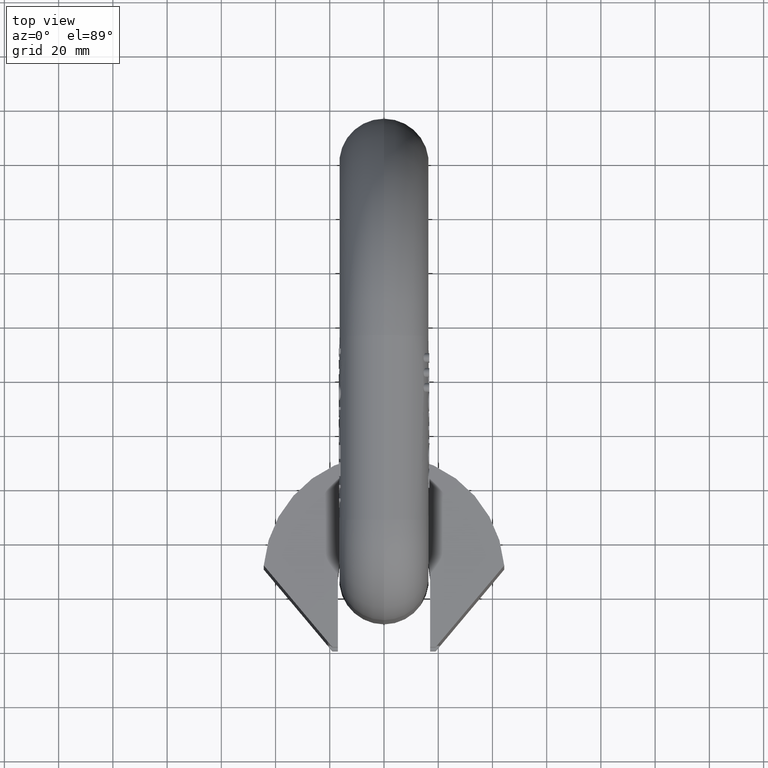
[diagram: clean part render]
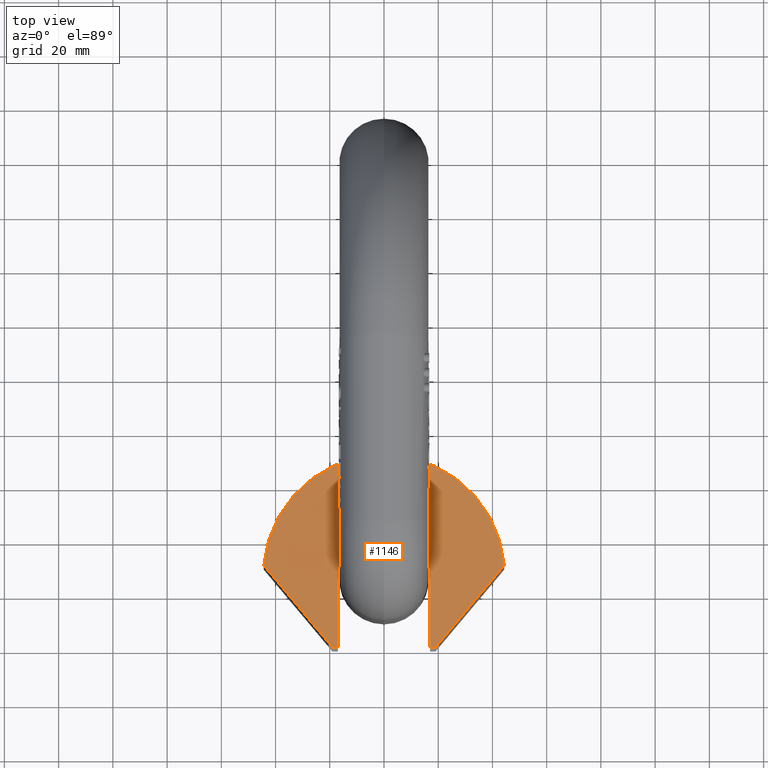
[diagram: same view with one face highlighted and labeled with its STEP entity id]
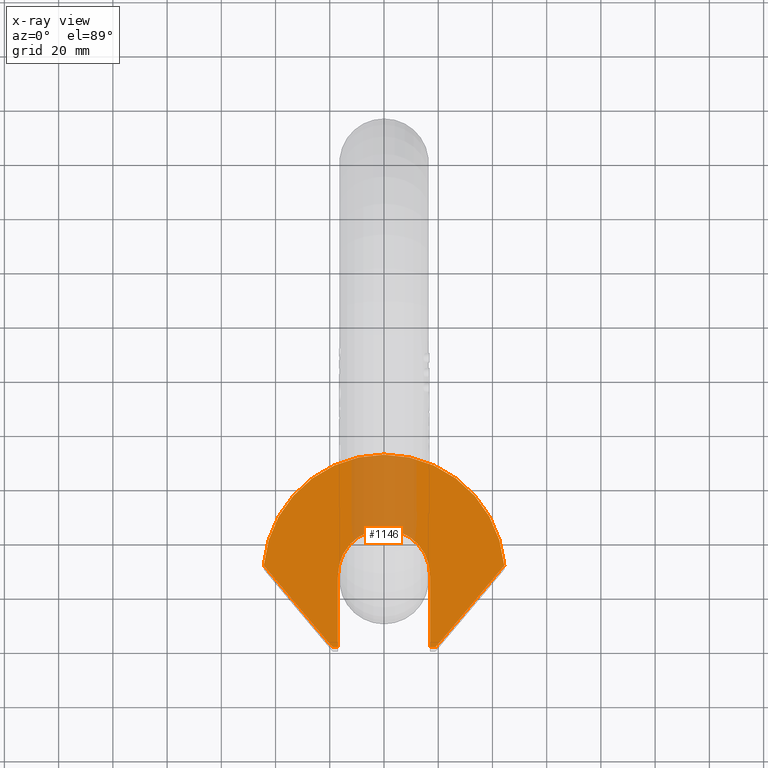
[diagram: x-ray of the same camera — body ghosted, the highlighted face saturated]
A machine part, top view. The second image highlights one B-rep face of the part: STEP entity #1146.
The next image is the same camera in x-ray: the body ghosted, the highlighted face saturated — about 20% of this face is hidden behind the body in this view.
In plain terms, the highlighted planar face has unit normal (0, 0, -1).
Its self-contained STEP definition (entity closure, byte-faithful):
#935=PLANE('',#7087);
#1146=ADVANCED_FACE('',(#1547),#935,.F.);
#1547=FACE_OUTER_BOUND('',#1909,.T.);
#1909=EDGE_LOOP('',(#2408,#2409,#2410,#2411,#2412,#2413,#2414,#2415));
#2342=CIRCLE('',#7083,44.5);
#2344=CIRCLE('',#7086,17.);
#2408=ORIENTED_EDGE('',*,*,#5086,.F.);
#2409=ORIENTED_EDGE('',*,*,#5087,.T.);
#2410=ORIENTED_EDGE('',*,*,#5088,.T.);
#2411=ORIENTED_EDGE('',*,*,#5089,.T.);
#2412=ORIENTED_EDGE('',*,*,#5090,.T.);
#2413=ORIENTED_EDGE('',*,*,#5091,.T.);
#2414=ORIENTED_EDGE('',*,*,#5092,.F.);
#2415=ORIENTED_EDGE('',*,*,#5083,.T.);
#4408=VERTEX_POINT('',#8687);
#4410=VERTEX_POINT('',#8690);
#4412=VERTEX_POINT('',#8696);
#4413=VERTEX_POINT('',#8698);
#4414=VERTEX_POINT('',#8700);
#4415=VERTEX_POINT('',#8702);
#4416=VERTEX_POINT('',#8704);
#4417=VERTEX_POINT('',#8706);
#5083=EDGE_CURVE('',#4410,#4408,#2342,.T.);
#5086=EDGE_CURVE('',#4412,#4408,#6086,.T.);
#5087=EDGE_CURVE('',#4412,#4413,#6087,.T.);
#5088=EDGE_CURVE('',#4413,#4414,#6088,.T.);
#5089=EDGE_CURVE('',#4414,#4415,#2344,.T.);
#5090=EDGE_CURVE('',#4415,#4416,#6089,.T.);
#5091=EDGE_CURVE('',#4416,#4417,#6090,.T.);
#5092=EDGE_CURVE('',#4410,#4417,#6091,.T.);
#6086=LINE('',#8695,#6510);
#6087=LINE('',#8697,#6511);
#6088=LINE('',#8699,#6512);
#6089=LINE('',#8703,#6513);
#6090=LINE('',#8705,#6514);
#6091=LINE('',#8707,#6515);
#6510=VECTOR('',#7435,1.);
#6511=VECTOR('',#7436,1.);
#6512=VECTOR('',#7437,1.);
#6513=VECTOR('',#7440,1.);
#6514=VECTOR('',#7441,1.);
#6515=VECTOR('',#7442,1.);
#7083=AXIS2_PLACEMENT_3D('',#8689,#7428,#7429);
#7086=AXIS2_PLACEMENT_3D('',#8701,#7438,#7439);
#7087=AXIS2_PLACEMENT_3D('',#8708,#7443,#7444);
#7428=DIRECTION('',(0.,0.,1.));
#7429=DIRECTION('',(1.,0.,0.));
#7435=DIRECTION('',(-0.642787609686539,0.766044443118978,0.));
#7436=DIRECTION('',(1.,0.,0.));
#7437=DIRECTION('',(1.30922526488816E-16,1.,0.));
#7438=DIRECTION('',(0.,0.,-1.));
#7439=DIRECTION('',(1.,2.04085114820801E-16,0.));
#7440=DIRECTION('',(1.30922526488816E-16,-1.,0.));
#7441=DIRECTION('',(1.,1.43429255494729E-32,0.));
#7442=DIRECTION('',(-0.642787609686539,-0.766044443118978,0.));
#7443=DIRECTION('',(0.,0.,-1.));
#7444=DIRECTION('',(-1.,0.,0.));
#8687=CARTESIAN_POINT('',(-44.3454510624484,30.2055323595936,45.));
#8689=CARTESIAN_POINT('',(0.,26.5,45.));
#8690=CARTESIAN_POINT('',(44.3454510624484,30.2055323595936,45.));
#8695=CARTESIAN_POINT('',(-24.1983604152476,6.19516470047084,45.));
#8696=CARTESIAN_POINT('',(-19.,8.88178419700124E-16,45.));
#8697=CARTESIAN_POINT('',(-44.5,-3.94430452610506E-31,45.));
#8698=CARTESIAN_POINT('',(-17.,-3.94430452610506E-31,45.));
#8699=CARTESIAN_POINT('',(-17.,0.,45.));
#8700=CARTESIAN_POINT('',(-17.,26.5,45.));
#8701=CARTESIAN_POINT('',(0.,26.5,45.));
#8702=CARTESIAN_POINT('',(17.,26.5,45.));
#8703=CARTESIAN_POINT('',(17.,26.5,45.));
#8704=CARTESIAN_POINT('',(17.,0.,45.));
#8705=CARTESIAN_POINT('',(17.,-7.88860905221012E-31,45.));
#8706=CARTESIAN_POINT('',(19.,8.88178419700125E-16,45.));
#8707=CARTESIAN_POINT('',(24.1983604152476,6.19516470047084,45.));
#8708=CARTESIAN_POINT('',(0.,26.5,45.));